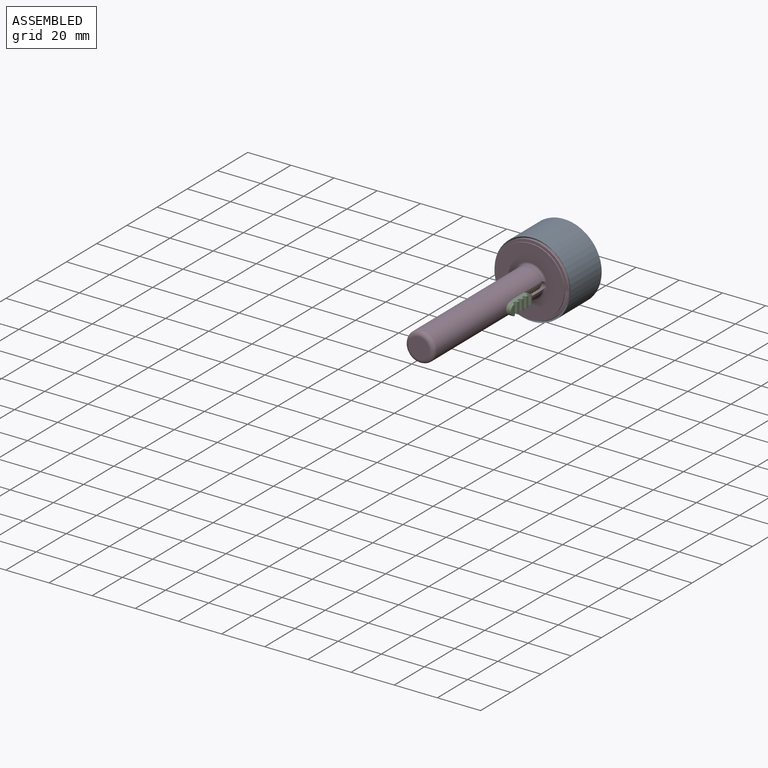
[diagram: assembled view]
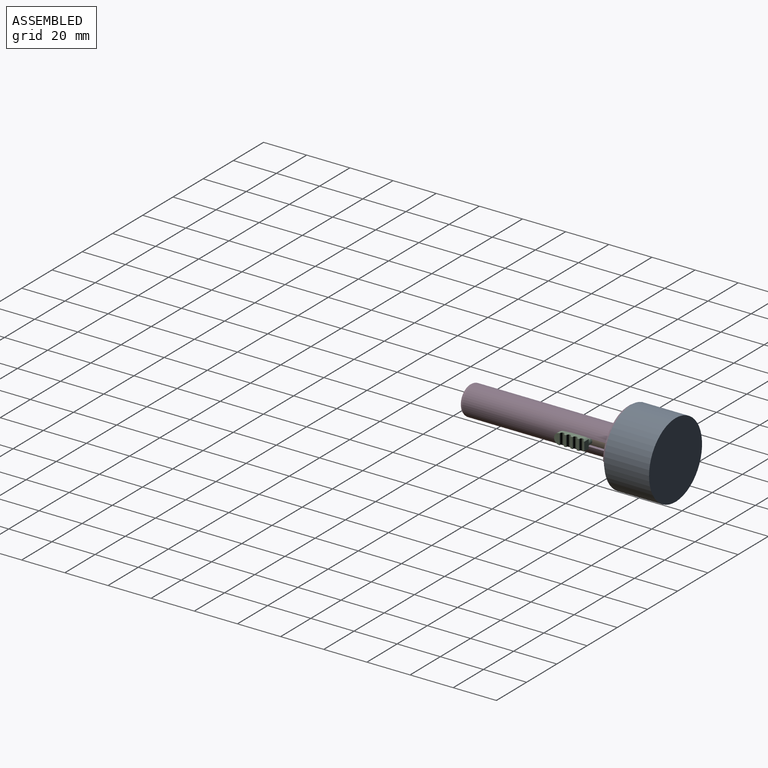
[diagram: assembled view, second angle]
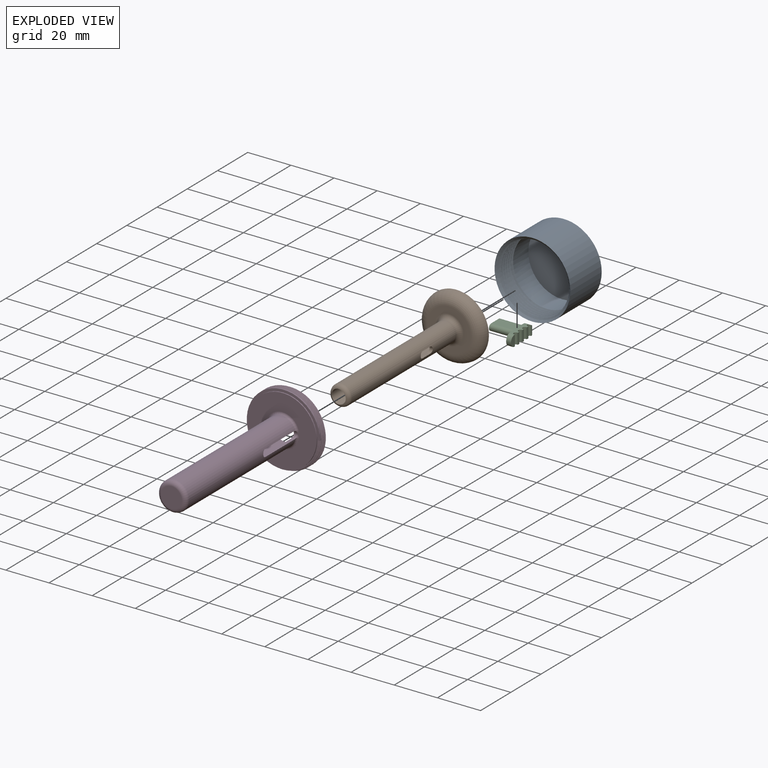
[diagram: exploded view]
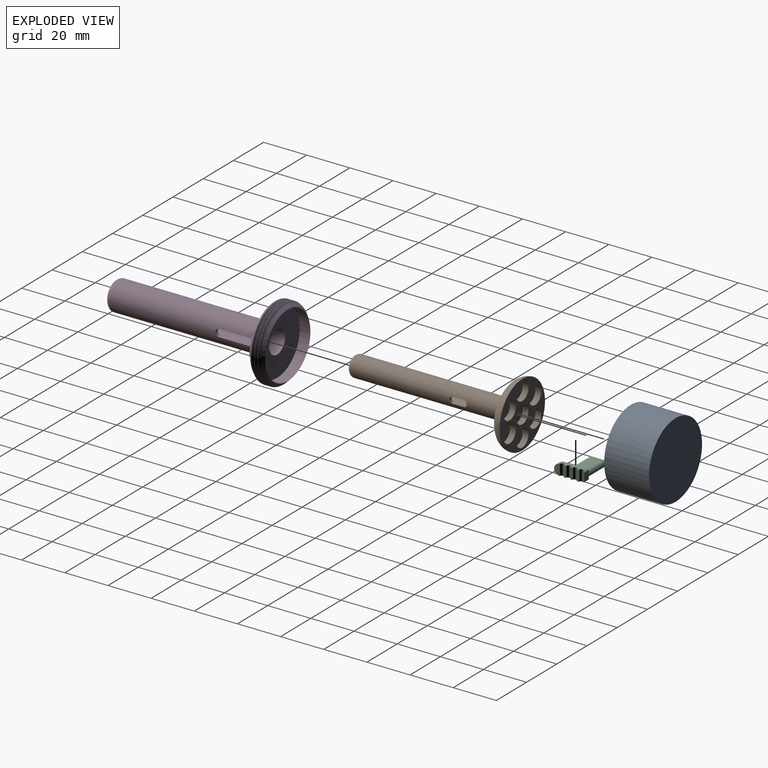
[diagram: exploded view, second angle]
ASSEMBLY  parts=4 mates=3
PART A: 13 faces, bbox 35.1x21x39.1 mm
  f0: cylinder r=15.75mm len=31.5mm, axis (0,1,0), area 976.8mm2, adj f1,f8,f10,f11,f12
  f1: cylinder r=15.75mm len=31.5mm, axis (0,1,0), area 12.6mm2, adj f0,f2,f10,f11
  f2: cylinder r=15.75mm len=31.5mm, axis (0,1,0), area 12.6mm2, adj f1,f3,f10,f11
  f3: cylinder r=15.75mm len=31.5mm, axis (0,1,0), area 12.5mm2, adj f2,f4,f10,f11
  f4: cylinder r=15.75mm len=31.5mm, axis (0,1,0), area 12.6mm2, adj f3,f5,f10,f11
  f5: cylinder r=15.75mm len=31.5mm, axis (0,1,0), area 10.1mm2, adj f4,f9,f10,f11
  f6: cylinder r=17.55mm len=35.1mm, axis (0,1,0), area 2293.6mm2, adj f7,f9
  f7: plane 35.1x35.1mm, normal (0,1,0), area 967.6mm2, adj f6
  f8: plane 31.5x31.5mm, normal (0,-1,0), area 779.3mm2, adj f0
  f9: cone r=17.75mm half-angle=45deg, axis (0,-1,0), area 188.4mm2, adj f5,f6,f10,f11
  f10: bspline ~39.12x33.88mm, area 860.5mm2, adj f0,f1,f2,f3,f4,f5,f9,f11
  f11: bspline ~39.12x33.88mm, area 789.8mm2, adj f0,f1,f2,f3,f4,f5,f9,f10
  f12: plane 1.37x1.03mm, normal (0.87,0,0.5), area 0.8mm2, adj f0,f10,f11
PART B: 33 faces, bbox 32.5x78.1x32.5 mm
  f0: cylinder r=3.25mm len=60mm, axis (0,1,0), area 1179.5mm2, adj f1,f2,f3,f4,f5,f6,f7,f8
  f1: plane 6.5x6.5mm, normal (0,-1,0), area 33.2mm2, adj f0
  f2: plane 6.5x6.5mm, normal (0,1,0), area 33.2mm2, adj f0
  f3: plane 5x1.62mm, normal (0,0,1), area 8.1mm2, adj f0,f4,f6,f11
  f4: cylinder r=1.5mm len=3mm, axis (-1,0,0), area 7.4mm2, adj f0,f3,f5,f11
  f5: plane 5x1.62mm, normal (0,0,-1), area 8.1mm2, adj f0,f4,f6,f11
  f6: cylinder r=1.5mm len=3mm, axis (-1,0,0), area 7.4mm2, adj f0,f3,f5,f11
  f7: cylinder r=1.5mm len=3mm, axis (-1,0,0), area 7.4mm2, adj f0,f8,f10,f11
  f8: plane 5x1.62mm, normal (0,0,-1), area 8.1mm2, adj f0,f7,f9,f11
  f9: cylinder r=1.5mm len=3mm, axis (-1,0,0), area 7.4mm2, adj f0,f8,f10,f11
  f10: plane 5x1.62mm, normal (0,0,1), area 8.1mm2, adj f0,f7,f9,f11
  f11: cylinder r=4.75mm len=69.06mm, axis (0,1,0), area 2016.4mm2, adj f3,f4,f5,f6,f7,f8,f9,f10
  f12: plane 20x20mm, normal (0,-1,0), area 171mm2, adj f30,f32
  f13: plane 30x30mm, normal (0,1,0), area 346.1mm2, adj f15,f17,f19,f21,f23,f25,f27,f30
  f14: cylinder r=3.25mm len=10mm, axis (0,1,0), area 204.2mm2, adj f29,f31
  f15: cylinder r=4.05mm len=8.1mm, axis (0,1,0), area 68.7mm2, adj f13,f16
  f16: plane 8.1x8.1mm, normal (0,1,0), area 51.5mm2, adj f15
  f17: cylinder r=4.05mm len=8.1mm, axis (0,1,0), area 68.7mm2, adj f13,f18
  f18: plane 8.1x8.1mm, normal (0,1,0), area 51.5mm2, adj f17
  f19: cylinder r=4.05mm len=8.1mm, axis (0,1,0), area 68.7mm2, adj f13,f20
  f20: plane 8.1x8.1mm, normal (0,1,0), area 51.5mm2, adj f19
  f21: cylinder r=4.05mm len=8.1mm, axis (0,1,0), area 68.7mm2, adj f13,f22
  f22: plane 8.1x8.1mm, normal (0,1,0), area 51.5mm2, adj f21
  f23: cylinder r=4.05mm len=8.1mm, axis (0,1,0), area 68.7mm2, adj f13,f24
  f24: plane 8.1x8.1mm, normal (0,1,0), area 51.5mm2, adj f23
  f25: cylinder r=4.05mm len=8.1mm, axis (0,1,0), area 68.7mm2, adj f13,f26
  f26: plane 8.1x8.1mm, normal (0,1,0), area 51.5mm2, adj f25
  f27: cylinder r=4.05mm len=8.1mm, axis (0,1,0), area 68.7mm2, adj f13,f28
  f28: plane 8.1x8.1mm, normal (0,1,0), area 51.5mm2, adj f27
  f29: plane 6.5x6.5mm, normal (0,-1,0), area 33.2mm2, adj f14
  f30: torus R=10mm, axis (0,-1,0), area 650.6mm2, adj f12,f13
  f31: torus R=2.75mm, axis (0,-1,0), area 69.9mm2, adj f11,f14
  f32: torus R=6.75mm, axis (0,-1,0), area 108.1mm2, adj f11,f12
PART C: 22 faces, bbox 14.4x14x5 mm
  f0: plane 8.11x5mm, normal (1,0,0), area 18mm2, adj f1,f3,f8,f9,f10,f12,f13,f14
  f1: plane 10x3mm, normal (0,0,1), area 22.3mm2, adj f0,f2,f5,f6,f7,f10,f11,f17
  f2: cylinder r=2.5mm len=5mm, axis (1,0,0), area 18.4mm2, adj f1,f3,f11,f17
  f3: plane 10x3mm, normal (0,0,-1), area 22.3mm2, adj f0,f2,f5,f6,f7,f8,f11,f17
  f4: plane 4.55x0.46mm, normal (-1,0,0), area 2mm2, adj f8,f9,f10,f21
  f5: plane 5x1.04mm, normal (-1,0,0), area 5.2mm2, adj f1,f3,f19,f20
  f6: plane 5x1.04mm, normal (-1,0,0), area 5.2mm2, adj f1,f3,f18,f19
  f7: plane 5x1.04mm, normal (-1,0,0), area 5.2mm2, adj f1,f3,f18,f21
  f8: cylinder r=2.5mm len=3mm, axis (1,0,0), area 3.7mm2, adj f0,f3,f4,f9,f21
  f9: plane 4x3mm, normal (0,1,0), area 12mm2, adj f0,f4,f8,f10
  f10: cylinder r=2.5mm len=3mm, axis (1,0,0), area 3.7mm2, adj f0,f1,f4,f9,f21
  f11: plane 5x2.58mm, normal (-1,0,0), area 10.2mm2, adj f1,f2,f3,f20
  f12: cylinder r=1.5mm len=11.4mm, axis (-1,0,0), area 53.7mm2, adj f0,f13,f15,f16
  f13: plane 11.4x5mm, normal (0,0,1), area 57mm2, adj f0,f12,f14,f16
  f14: cylinder r=1.5mm len=11.4mm, axis (-1,0,0), area 53.7mm2, adj f0,f13,f15,f16
  f15: plane 11.4x5mm, normal (0,0,-1), area 57mm2, adj f0,f12,f14,f16
  f16: plane 8x3mm, normal (1,0,0), area 22.1mm2, adj f12,f13,f14,f15
  f17: plane 5.89x5mm, normal (0.99,-0.13,0), area 27mm2, adj f0,f1,f2,f3
  f18: cylinder r=1mm len=5mm, axis (0,0,-1), area 17.8mm2, adj f1,f3,f6,f7
  f19: cylinder r=1mm len=5mm, axis (0,0,-1), area 17.8mm2, adj f1,f3,f5,f6
  f20: cylinder r=1mm len=5mm, axis (0,0,-1), area 17.8mm2, adj f1,f3,f5,f11
  f21: cylinder r=1mm len=5mm, axis (0,0,-1), area 17.3mm2, adj f1,f3,f4,f7,f8,f10
PART D: 24 faces, bbox 34.1x80.1x39.4 mm
  f0: cylinder r=5.25mm len=73.5mm, axis (0,1,0), area 2354mm2, adj f8,f15,f16,f17,f18,f19
  f1: cylinder r=15mm len=30mm, axis (0,1,0), area 466.5mm2, adj f4,f8
  f2: cylinder r=16.95mm len=33.9mm, axis (0,1,0), area 56.9mm2, adj f3,f4,f5,f6,f7
  f3: plane 33.9x33.54mm, normal (0,-1,0), area 102.5mm2, adj f2,f5,f6,f9
  f4: cone r=16.95mm half-angle=45deg, axis (0,-1,0), area 196.2mm2, adj f1,f2,f6,f7
  f5: plane 1.19x0.79mm, normal (0,0,1), area 0.5mm2, adj f2,f3,f6,f7
  f6: bspline ~39.39x34.11mm, area 432.9mm2, adj f2,f3,f4,f5,f7
  f7: bspline ~39.39x34.11mm, area 390.3mm2, adj f2,f4,f5,f6
  f8: plane 30x30mm, normal (0,1,0), area 620.3mm2, adj f0,f1
  f9: cylinder r=15.75mm len=31.5mm, axis (0,1,0), area 49.5mm2, adj f3,f10
  f10: plane 31.5x31.5mm, normal (0,-1,0), area 591.8mm2, adj f9,f20,f21,f22
  f11: cylinder r=6.75mm len=70.5mm, axis (0,1,0), area 2917.7mm2, adj f12,f13,f16,f18,f19,f21,f23
  f12: cylinder r=6.75mm len=0.7mm, axis (0,1,0), area 0.1mm2, adj f11,f16,f21
  f13: cylinder r=6.75mm len=19mm, axis (0,1,0), area 0mm2, adj f11,f16,f17
  f14: plane 9.5x9.5mm, normal (0,-1,0), area 70.9mm2, adj f23
  f15: plane 10.5x10.5mm, normal (0,1,0), area 86.6mm2, adj f0
  f16: cylinder r=1.7mm len=3.4mm, axis (1,0,0), area 8.3mm2, adj f0,f11,f12,f13,f17,f19,f20,f22
  f17: plane 18.92x1.54mm, normal (0,0,-1), area 29.2mm2, adj f0,f13,f16,f18
  f18: cylinder r=1.7mm len=3.4mm, axis (1,0,0), area 8.4mm2, adj f0,f11,f17,f19
  f19: plane 19x1.6mm, normal (0,0,1), area 30.3mm2, adj f0,f11,f16,f18
  f20: bspline ~1.89x1.04mm, area 0.8mm2, adj f10,f16,f21
  f21: torus R=7.75mm, axis (0,-1,0), area 65mm2, adj f10,f11,f12,f20,f22
  f22: bspline ~1.91x1.07mm, area 0.8mm2, adj f10,f16,f21
  f23: torus R=4.75mm, axis (0,-1,0), area 118.9mm2, adj f11,f14
PLACE A rot(axis=(0.04,0.98,-0.21),0deg) t=(-2.26,-5.57,5.97)mm fixed
PLACE B rot(axis=(0.04,0.98,-0.21),0deg) t=(-2.26,-17.37,5.97)mm
PLACE C rot(axis=(0,-1,0),180deg) t=(-2.26,-17.37,5.97)mm
PLACE D rot(axis=(0,-1,0),180deg) t=(-2.26,-10.32,5.97)mm
MATE fastened A.f0 <-> D.f0  axis (0,-1,0) through (-2.26,-25.37,5.97)mm
MATE slider B.f0 <-> A.f0  axis (0,1,0) through (-2.26,-17.37,5.97)mm
MATE fastened C.f12 <-> B.f6  axis (-1,0,0) through (-6.66,-41.37,5.97)mm
